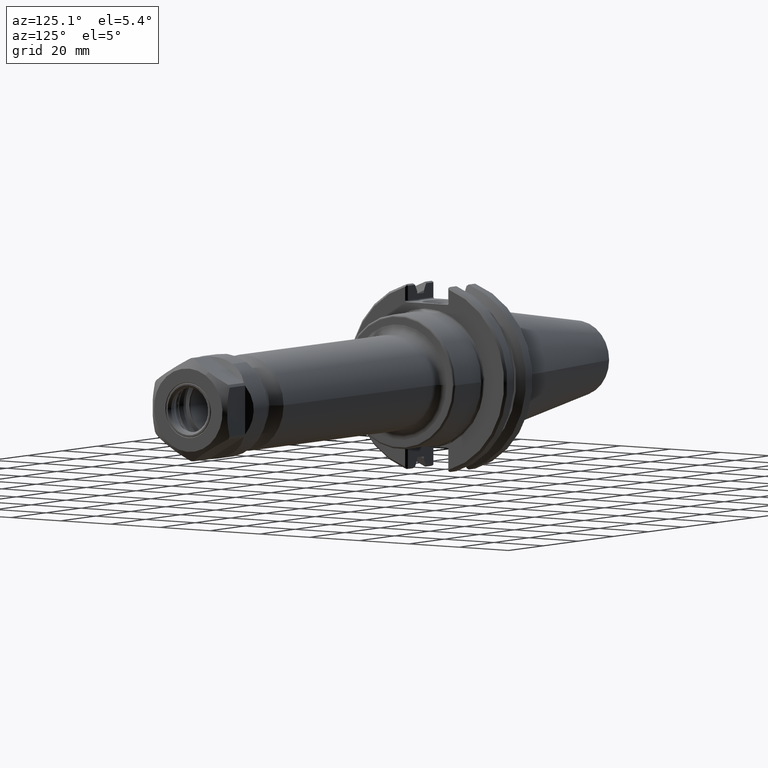
[diagram: clean part render]
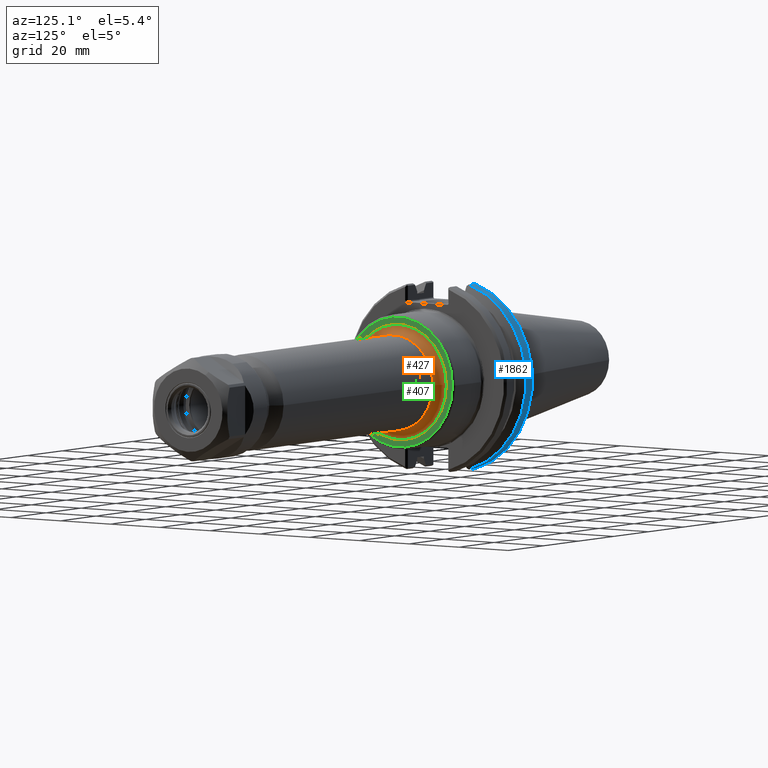
[diagram: same view with three faces highlighted in distinct colors, each labeled with its STEP entity id]
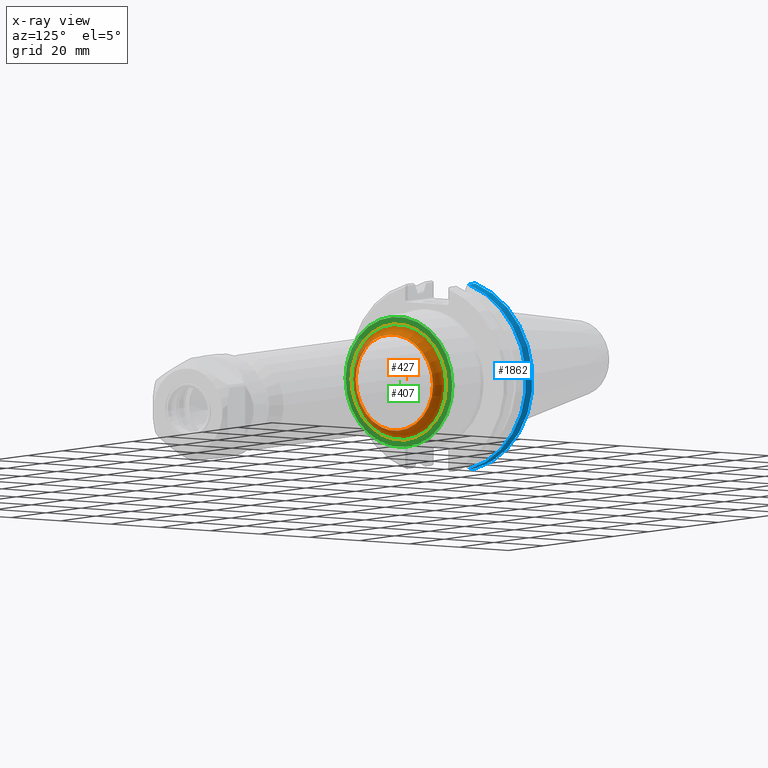
[diagram: x-ray of the same camera — body ghosted, the three highlighted faces saturated]
A machine part, auxiliary view with three faces highlighted in distinct colors.
The next image is the same camera in x-ray (body ghosted, the three faces saturated) — at least one of them is partly hidden behind the body in this view.
Their STEP definitions:

[orange] entity #427 — the highlighted toroidal blend (fillet) surface has major radius 19.05 mm and minor (blend) radius 3.175 mm.
#396=CARTESIAN_POINT('',(1.38,0.75,1.836970E-016));
#397=VERTEX_POINT('',#396);
#398=CARTESIAN_POINT('',(1.38,0.0,0.0));
#399=DIRECTION('',(1.0,0.0,0.0));
#400=DIRECTION('',(0.0,-1.0,0.0));
#401=AXIS2_PLACEMENT_3D('',#398,#399,#400);
#402=CIRCLE('',#401,0.75);
#403=EDGE_CURVE('',#397,#397,#402,.T.);
#408=CARTESIAN_POINT('',(1.505,0.0,0.0));
#409=DIRECTION('',(-1.0,0.0,0.0));
#410=DIRECTION('',(0.0,0.0,1.0));
#411=AXIS2_PLACEMENT_3D('',#408,#409,#410);
#412=TOROIDAL_SURFACE('',#411,0.75,0.125);
#413=CARTESIAN_POINT('',(1.505,0.625,0.0));
#414=VERTEX_POINT('',#413);
#415=CARTESIAN_POINT('',(1.505,0.0,0.0));
#416=DIRECTION('',(-1.0,0.0,0.0));
#417=DIRECTION('',(0.0,-1.0,0.0));
#418=AXIS2_PLACEMENT_3D('',#415,#416,#417);
#419=CIRCLE('',#418,0.625);
#420=EDGE_CURVE('',#414,#414,#419,.T.);
#421=ORIENTED_EDGE('',*,*,#420,.T.);
#422=EDGE_LOOP('',(#421));
#423=FACE_OUTER_BOUND('',#422,.T.);
#424=ORIENTED_EDGE('',*,*,#403,.T.);
#425=EDGE_LOOP('',(#424));
#426=FACE_BOUND('',#425,.T.);
#427=ADVANCED_FACE('',(#423,#426),#412,.F.);

[blue] entity #1862 — the highlighted cylindrical surface (partial cylindrical patch) has radius 31.75 mm, axis along (1, 0, 0).
#1789=CARTESIAN_POINT('',(0.154999999999797,0.344098106798456,-1.201705659842592));
#1790=VERTEX_POINT('',#1789);
#1804=CARTESIAN_POINT('',(0.299526127773361,0.344098106798456,-1.201705659842592));
#1805=VERTEX_POINT('',#1804);
#1806=CARTESIAN_POINT('',(0.154999999999797,0.344098106798456,-1.201705659842592));
#1807=DIRECTION('',(1.0,0.0,0.0));
#1808=VECTOR('',#1807,0.144526127773564);
#1809=LINE('',#1806,#1808);
#1810=EDGE_CURVE('',#1790,#1805,#1809,.T.);
#1830=CARTESIAN_POINT('',(0.4375,0.0,0.0));
#1831=DIRECTION('',(1.0,0.0,0.0));
#1832=DIRECTION('',(-1.624514E-013,1.0,0.0));
#1833=AXIS2_PLACEMENT_3D('',#1830,#1831,#1832);
#1834=CYLINDRICAL_SURFACE('',#1833,1.25);
#1835=ORIENTED_EDGE('',*,*,#1810,.F.);
#1836=CARTESIAN_POINT('',(0.154999999999797,0.344098106798413,1.201705659842604));
#1837=VERTEX_POINT('',#1836);
#1838=CARTESIAN_POINT('',(0.154999999999797,0.0,0.0));
#1839=DIRECTION('',(-1.0,-1.624514E-013,0.0));
#1840=DIRECTION('',(-1.624514E-013,1.0,0.0));
#1841=AXIS2_PLACEMENT_3D('',#1838,#1839,#1840);
#1842=CIRCLE('',#1841,1.25);
#1843=EDGE_CURVE('',#1837,#1790,#1842,.T.);
#1844=ORIENTED_EDGE('',*,*,#1843,.F.);
#1845=CARTESIAN_POINT('',(0.299526127773361,0.344098106798413,1.201705659842604));
#1846=VERTEX_POINT('',#1845);
#1847=CARTESIAN_POINT('',(0.299526127773361,0.344098106798413,1.201705659842604));
#1848=DIRECTION('',(-1.0,0.0,0.0));
#1849=VECTOR('',#1848,0.144526127773564);
#1850=LINE('',#1847,#1849);
#1851=EDGE_CURVE('',#1846,#1837,#1850,.T.);
#1852=ORIENTED_EDGE('',*,*,#1851,.F.);
#1853=CARTESIAN_POINT('',(0.299526127773361,0.0,0.0));
#1854=DIRECTION('',(-1.0,-1.624514E-013,0.0));
#1855=DIRECTION('',(-1.624514E-013,1.0,0.0));
#1856=AXIS2_PLACEMENT_3D('',#1853,#1854,#1855);
#1857=CIRCLE('',#1856,1.25);
#1858=EDGE_CURVE('',#1846,#1805,#1857,.T.);
#1859=ORIENTED_EDGE('',*,*,#1858,.T.);
#1860=EDGE_LOOP('',(#1835,#1844,#1852,#1859));
#1861=FACE_OUTER_BOUND('',#1860,.T.);
#1862=ADVANCED_FACE('',(#1861),#1834,.T.);

[green] entity #407 — the highlighted planar face has unit normal (1, 0, 0).
#376=CARTESIAN_POINT('',(1.38,0.845,-2.069653E-016));
#377=VERTEX_POINT('',#376);
#378=CARTESIAN_POINT('',(1.38,0.0,0.0));
#379=DIRECTION('',(-1.0,0.0,0.0));
#380=DIRECTION('',(0.0,-1.0,0.0));
#381=AXIS2_PLACEMENT_3D('',#378,#379,#380);
#382=CIRCLE('',#381,0.845);
#383=EDGE_CURVE('',#377,#377,#382,.T.);
#388=CARTESIAN_POINT('',(1.38,0.4375,0.0));
#389=DIRECTION('',(1.0,0.0,0.0));
#390=DIRECTION('',(0.0,0.0,-1.0));
#391=AXIS2_PLACEMENT_3D('',#388,#389,#390);
#392=PLANE('',#391);
#393=ORIENTED_EDGE('',*,*,#383,.F.);
#394=EDGE_LOOP('',(#393));
#395=FACE_OUTER_BOUND('',#394,.T.);
#396=CARTESIAN_POINT('',(1.38,0.75,1.836970E-016));
#397=VERTEX_POINT('',#396);
#398=CARTESIAN_POINT('',(1.38,0.0,0.0));
#399=DIRECTION('',(1.0,0.0,0.0));
#400=DIRECTION('',(0.0,-1.0,0.0));
#401=AXIS2_PLACEMENT_3D('',#398,#399,#400);
#402=CIRCLE('',#401,0.75);
#403=EDGE_CURVE('',#397,#397,#402,.T.);
#404=ORIENTED_EDGE('',*,*,#403,.F.);
#405=EDGE_LOOP('',(#404));
#406=FACE_BOUND('',#405,.T.);
#407=ADVANCED_FACE('',(#395,#406),#392,.T.);